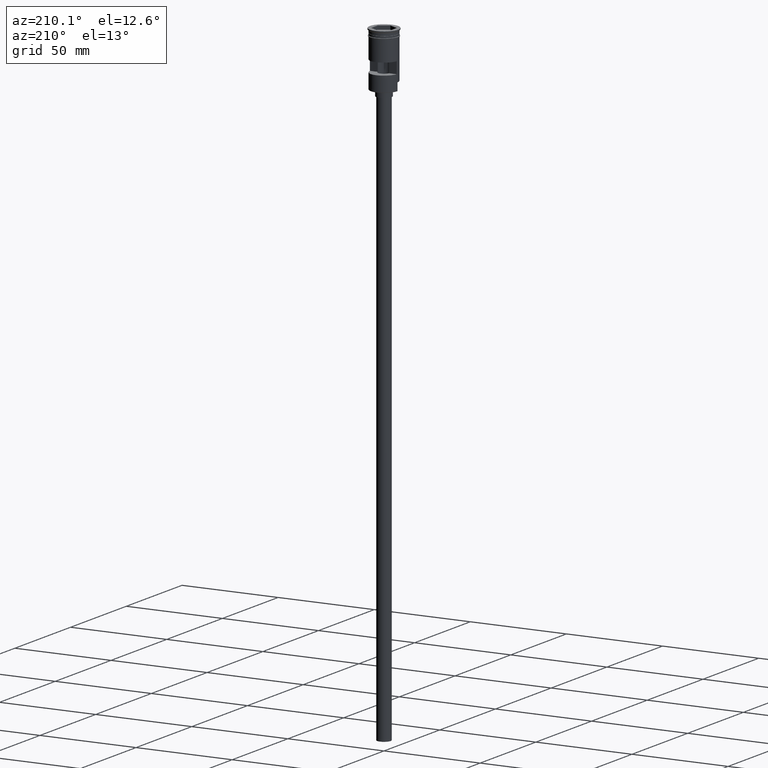
[diagram: clean part render]
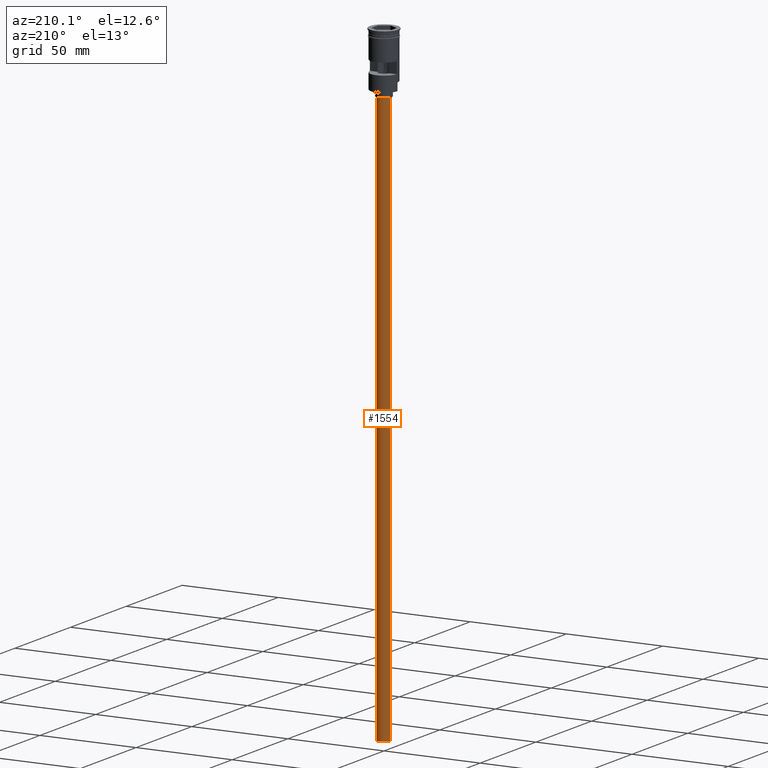
[diagram: same view with one face highlighted and labeled with its STEP entity id]
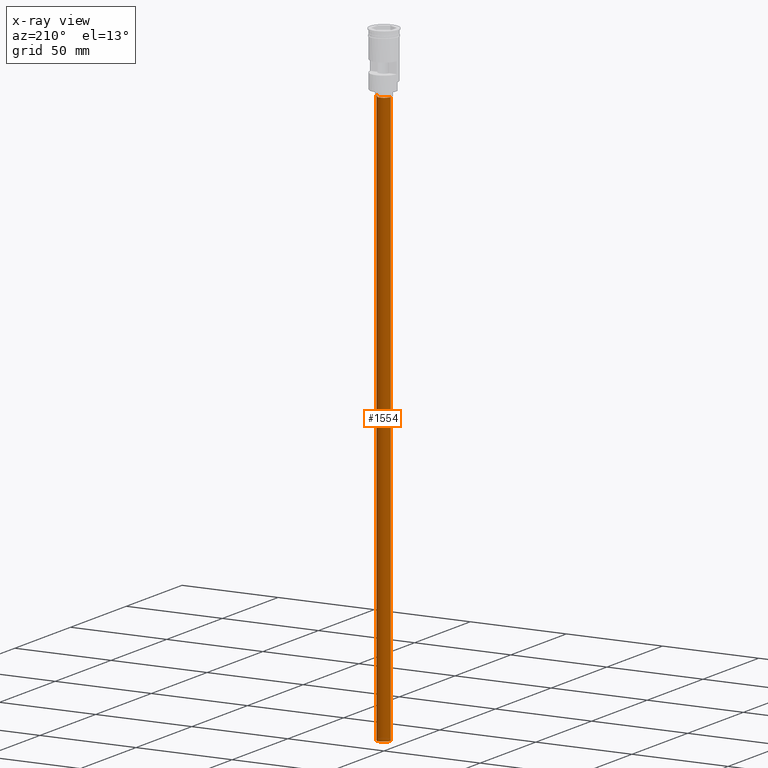
[diagram: x-ray of the same camera — body ghosted, the highlighted face saturated]
A machine part, auxiliary view. The second image highlights one B-rep face of the part: STEP entity #1554.
The next image is the same camera in x-ray: the body ghosted, the highlighted face saturated — about 0% of this face is hidden behind the body in this view.
In plain terms, the highlighted cylindrical surface (edge-blend (fillet) strip) has radius 3.5 mm, axis along (-0, -0, 1).
Its self-contained STEP definition (entity closure, byte-faithful):
#65 = VERTEX_POINT ( 'NONE', #1386 ) ;
#213 = CYLINDRICAL_SURFACE ( 'NONE', #919, 3.500000000000000444 ) ;
#272 = DIRECTION ( 'NONE',  ( 0.000000000000000000, 0.000000000000000000, -1.000000000000000000 ) ) ;
#276 = VERTEX_POINT ( 'NONE', #1228 ) ;
#292 = CIRCLE ( 'NONE', #838, 3.500000000000000444 ) ;
#301 = DIRECTION ( 'NONE',  ( -0.000000000000000000, -0.000000000000000000, 1.000000000000000000 ) ) ;
#333 = FACE_OUTER_BOUND ( 'NONE', #1334, .T. ) ;
#342 = CARTESIAN_POINT ( 'NONE',  ( 0.000000000000000000, 0.000000000000000000, -328.5000000000000000 ) ) ;
#367 = VECTOR ( 'NONE', #301, 1000.000000000000000 ) ;
#411 = LINE ( 'NONE', #1428, #1149 ) ;
#531 = CARTESIAN_POINT ( 'NONE',  ( -3.500000000000000444, 4.286263797015737088E-16, -31.50000000000000000 ) ) ;
#619 = ORIENTED_EDGE ( 'NONE', *, *, #1502, .F. ) ;
#620 = CARTESIAN_POINT ( 'NONE',  ( 0.000000000000000000, 0.000000000000000000, -328.5000000000000000 ) ) ;
#622 = EDGE_CURVE ( 'NONE', #1055, #1285, #1321, .T. ) ;
#682 = CARTESIAN_POINT ( 'NONE',  ( 3.500000000000000444, 0.000000000000000000, -328.5000000000000000 ) ) ;
#786 = DIRECTION ( 'NONE',  ( -0.000000000000000000, -0.000000000000000000, 1.000000000000000000 ) ) ;
#819 = DIRECTION ( 'NONE',  ( 0.000000000000000000, 0.000000000000000000, -1.000000000000000000 ) ) ;
#836 = DIRECTION ( 'NONE',  ( -0.000000000000000000, -0.000000000000000000, 1.000000000000000000 ) ) ;
#838 = AXIS2_PLACEMENT_3D ( 'NONE', #620, #272, #1233 ) ;
#855 = EDGE_CURVE ( 'NONE', #276, #65, #292, .T. ) ;
#919 = AXIS2_PLACEMENT_3D ( 'NONE', #342, #836, #1594 ) ;
#920 = LINE ( 'NONE', #682, #367 ) ;
#1055 = VERTEX_POINT ( 'NONE', #531 ) ;
#1088 = ORIENTED_EDGE ( 'NONE', *, *, #1431, .T. ) ;
#1149 = VECTOR ( 'NONE', #786, 1000.000000000000000 ) ;
#1228 = CARTESIAN_POINT ( 'NONE',  ( -3.500000000000000444, 4.286263797015737088E-16, -328.5000000000000000 ) ) ;
#1233 = DIRECTION ( 'NONE',  ( -1.000000000000000000, 0.000000000000000000, 0.000000000000000000 ) ) ;
#1285 = VERTEX_POINT ( 'NONE', #1360 ) ;
#1321 = CIRCLE ( 'NONE', #1590, 3.500000000000000444 ) ;
#1334 = EDGE_LOOP ( 'NONE', ( #1406, #1088, #1506, #619 ) ) ;
#1344 = DIRECTION ( 'NONE',  ( -1.000000000000000000, 0.000000000000000000, 0.000000000000000000 ) ) ;
#1360 = CARTESIAN_POINT ( 'NONE',  ( 3.500000000000000444, 0.000000000000000000, -31.50000000000000000 ) ) ;
#1386 = CARTESIAN_POINT ( 'NONE',  ( 3.500000000000000444, 0.000000000000000000, -328.5000000000000000 ) ) ;
#1406 = ORIENTED_EDGE ( 'NONE', *, *, #855, .F. ) ;
#1428 = CARTESIAN_POINT ( 'NONE',  ( -3.500000000000000444, 4.286263797015737088E-16, -328.5000000000000000 ) ) ;
#1431 = EDGE_CURVE ( 'NONE', #276, #1055, #411, .T. ) ;
#1502 = EDGE_CURVE ( 'NONE', #65, #1285, #920, .T. ) ;
#1506 = ORIENTED_EDGE ( 'NONE', *, *, #622, .T. ) ;
#1554 = ADVANCED_FACE ( 'NONE', ( #333 ), #213, .T. ) ;
#1588 = CARTESIAN_POINT ( 'NONE',  ( 0.000000000000000000, 0.000000000000000000, -31.50000000000000000 ) ) ;
#1590 = AXIS2_PLACEMENT_3D ( 'NONE', #1588, #819, #1344 ) ;
#1594 = DIRECTION ( 'NONE',  ( 1.000000000000000000, 0.000000000000000000, 0.000000000000000000 ) ) ;